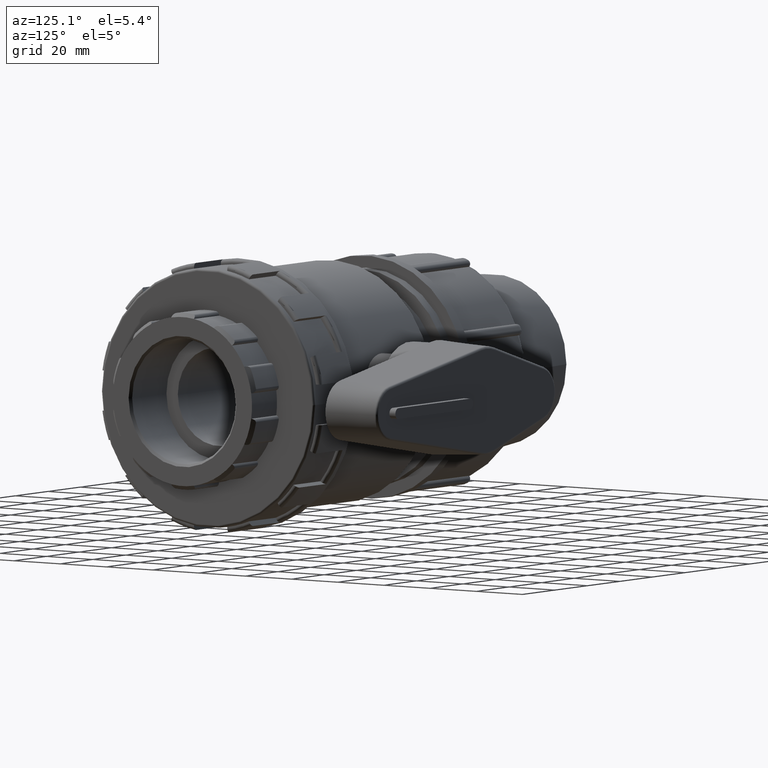
[diagram: clean part render]
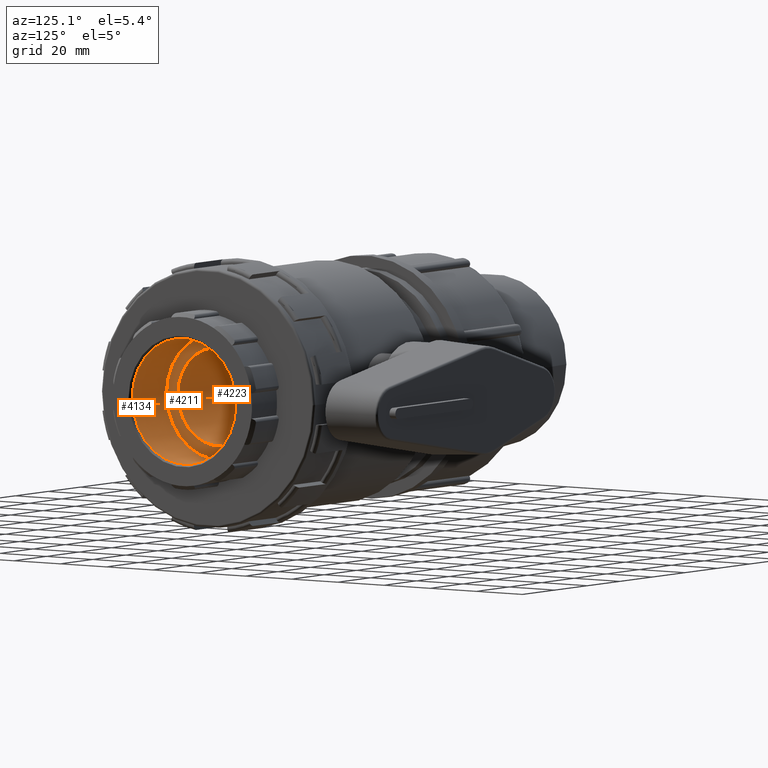
[diagram: same view with one multi-face feature highlighted, each face labeled with its STEP entity id]
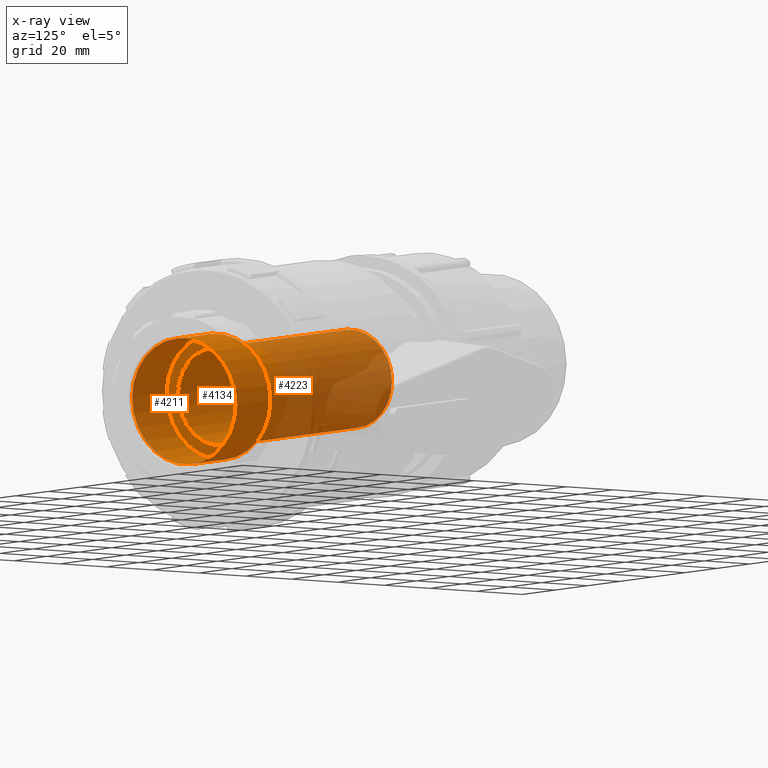
[diagram: x-ray of the same camera — body ghosted, the whole feature saturated]
A machine part, auxiliary view. The highlighted faces form ONE feature: a stepped (counterbored) hole: 2 coaxial cylindrical walls of radii 17.5 -> 22.4225 mm joined by 1 annular planar shoulder face(s). The faces share edges in the B-rep.
The next image is the same camera in x-ray: the body ghosted and the whole hole feature saturated, so the bore chain is visible through the body.
Their STEP definitions:
[1] entity #4134 (Cylinder):
#49=FACE_BOUND('',#778,.T.);
#514=FACE_OUTER_BOUND('',#777,.T.);
#777=EDGE_LOOP('',(#3396));
#778=EDGE_LOOP('',(#3397));
#1519=CIRCLE('',#4544,22.4225);
#1521=CIRCLE('',#4548,22.4225);
#1860=VERTEX_POINT('',#7755);
#1862=VERTEX_POINT('',#7761);
#2415=EDGE_CURVE('',#1860,#1860,#1519,.T.);
#2417=EDGE_CURVE('',#1862,#1862,#1521,.T.);
#3396=ORIENTED_EDGE('',*,*,#2417,.T.);
#3397=ORIENTED_EDGE('',*,*,#2415,.F.);
#3968=CYLINDRICAL_SURFACE('',#4547,22.4225);
#4134=ADVANCED_FACE('',(#514,#49),#3968,.F.);
#4544=AXIS2_PLACEMENT_3D('',#7756,#5494,#5495);
#4547=AXIS2_PLACEMENT_3D('',#7760,#5500,#5501);
#4548=AXIS2_PLACEMENT_3D('',#7762,#5502,#5503);
#5494=DIRECTION('center_axis',(-1.,0.,0.));
#5495=DIRECTION('ref_axis',(0.,-1.,0.));
#5500=DIRECTION('center_axis',(-1.,0.,0.));
#5501=DIRECTION('ref_axis',(0.,1.,0.));
#5502=DIRECTION('center_axis',(-1.,0.,0.));
#5503=DIRECTION('ref_axis',(0.,0.,1.));
#7755=CARTESIAN_POINT('',(63.7697666666667,22.4225,-2.74596428538815E-15));
#7756=CARTESIAN_POINT('Origin',(63.7697666666667,0.,0.));
#7760=CARTESIAN_POINT('Origin',(53.6666666666667,0.,0.));
#7761=CARTESIAN_POINT('',(42.6666666666667,22.4225,0.));
#7762=CARTESIAN_POINT('Origin',(42.6666666666667,0.,0.));
[2] entity #4223 (Cylinder):
#67=FACE_BOUND('',#885,.T.);
#603=FACE_OUTER_BOUND('',#884,.T.);
#884=EDGE_LOOP('',(#3900));
#885=EDGE_LOOP('',(#3901));
#1597=CIRCLE('',#4701,17.5);
#1607=CIRCLE('',#4722,17.5);
#2010=VERTEX_POINT('',#8638);
#2020=VERTEX_POINT('',#8669);
#2637=EDGE_CURVE('',#2010,#2010,#1597,.T.);
#2647=EDGE_CURVE('',#2020,#2020,#1607,.T.);
#3900=ORIENTED_EDGE('',*,*,#2637,.F.);
#3901=ORIENTED_EDGE('',*,*,#2647,.T.);
#3975=CYLINDRICAL_SURFACE('',#4723,17.5);
#4223=ADVANCED_FACE('',(#603,#67),#3975,.F.);
#4701=AXIS2_PLACEMENT_3D('',#8639,#5904,#5905);
#4722=AXIS2_PLACEMENT_3D('',#8670,#5946,#5947);
#4723=AXIS2_PLACEMENT_3D('',#8671,#5948,#5949);
#5904=DIRECTION('center_axis',(-1.,0.,0.));
#5905=DIRECTION('ref_axis',(0.,0.,1.));
#5946=DIRECTION('center_axis',(-1.,0.,0.));
#5947=DIRECTION('ref_axis',(0.,0.,1.));
#5948=DIRECTION('center_axis',(-1.,0.,0.));
#5949=DIRECTION('ref_axis',(0.,1.,0.));
#8638=CARTESIAN_POINT('',(42.6666666666667,17.5,0.));
#8639=CARTESIAN_POINT('Origin',(42.6666666666667,0.,0.));
#8669=CARTESIAN_POINT('',(-39.3333333333334,17.5,0.));
#8670=CARTESIAN_POINT('Origin',(-39.3333333333334,0.,0.));
#8671=CARTESIAN_POINT('Origin',(1.66666666666666,0.,0.));
[3] entity #4211 (Plane):
#54=FACE_BOUND('',#860,.T.);
#202=PLANE('',#4700);
#591=FACE_OUTER_BOUND('',#859,.T.);
#859=EDGE_LOOP('',(#3875));
#860=EDGE_LOOP('',(#3876));
#1521=CIRCLE('',#4548,22.4225);
#1597=CIRCLE('',#4701,17.5);
#1862=VERTEX_POINT('',#7761);
#2010=VERTEX_POINT('',#8638);
#2417=EDGE_CURVE('',#1862,#1862,#1521,.T.);
#2637=EDGE_CURVE('',#2010,#2010,#1597,.T.);
#3875=ORIENTED_EDGE('',*,*,#2417,.F.);
#3876=ORIENTED_EDGE('',*,*,#2637,.T.);
#4211=ADVANCED_FACE('',(#591,#54),#202,.T.);
#4548=AXIS2_PLACEMENT_3D('',#7762,#5502,#5503);
#4700=AXIS2_PLACEMENT_3D('',#8637,#5902,#5903);
#4701=AXIS2_PLACEMENT_3D('',#8639,#5904,#5905);
#5502=DIRECTION('center_axis',(-1.,0.,0.));
#5503=DIRECTION('ref_axis',(0.,0.,1.));
#5902=DIRECTION('center_axis',(1.,0.,0.));
#5903=DIRECTION('ref_axis',(0.,0.,-1.));
#5904=DIRECTION('center_axis',(-1.,0.,0.));
#5905=DIRECTION('ref_axis',(0.,0.,1.));
#7761=CARTESIAN_POINT('',(42.6666666666667,22.4225,0.));
#7762=CARTESIAN_POINT('Origin',(42.6666666666667,0.,0.));
#8637=CARTESIAN_POINT('Origin',(42.6666666666667,22.4225,0.));
#8638=CARTESIAN_POINT('',(42.6666666666667,17.5,0.));
#8639=CARTESIAN_POINT('Origin',(42.6666666666667,0.,0.));